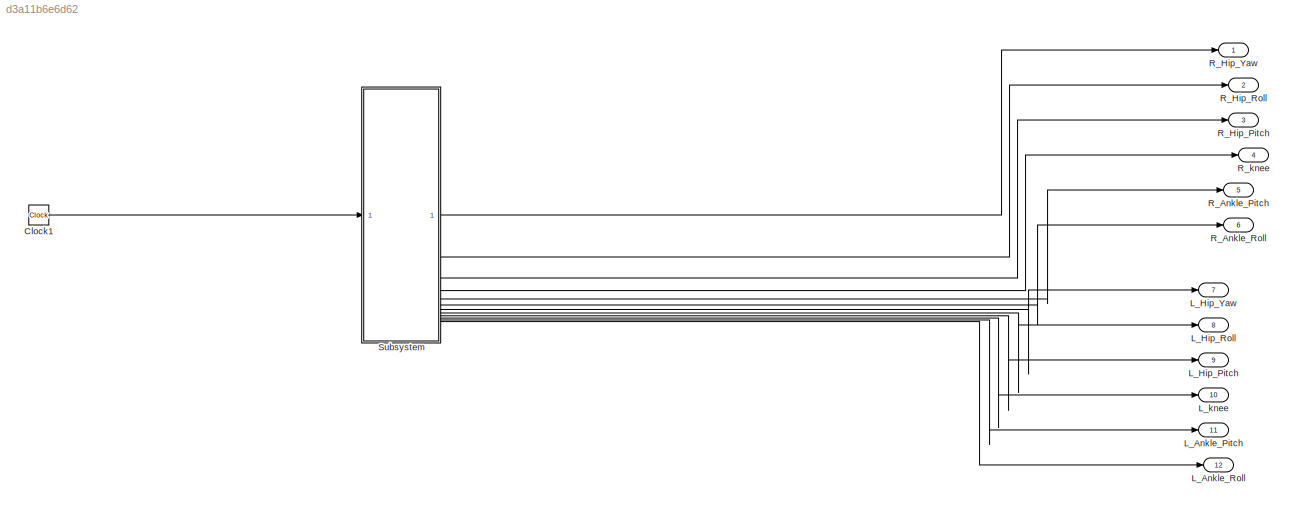
MODEL mdl_d3a11b6e6d62
KIND model
CONFIG AbsTol = auto
CONFIG EnableMultiTasking = off
CONFIG FixedStep = auto
CONFIG MaxStep = 0.01
CONFIG MinStep = auto
CONFIG RelTol = 1e-3
CONFIG SampleTimeConstraint = Unconstrained
CONFIG SolverName = VariableStepDiscrete
CONFIG StartTime = 0.0
CONFIG StopTime = inf
BLOCK [Clock] Clock1
  Decimation = 5
BLOCK [Outport] L_Ankle_Pitch
  Port = 11
BLOCK [Outport] L_Ankle_Roll
  Port = 12
BLOCK [Outport] L_Hip_Pitch
  Port = 9
BLOCK [Outport] L_Hip_Roll
  Port = 8
BLOCK [Outport] L_Hip_Yaw
  Port = 7
BLOCK [Outport] L_knee
  Port = 10
BLOCK [Outport] R_Ankle_Pitch
  Port = 5
BLOCK [Outport] R_Ankle_Roll
  Port = 6
BLOCK [Outport] R_Hip_Pitch
  Port = 3
BLOCK [Outport] R_Hip_Roll
  Port = 2
BLOCK [Outport] R_Hip_Yaw
BLOCK [Outport] R_knee
  Port = 4
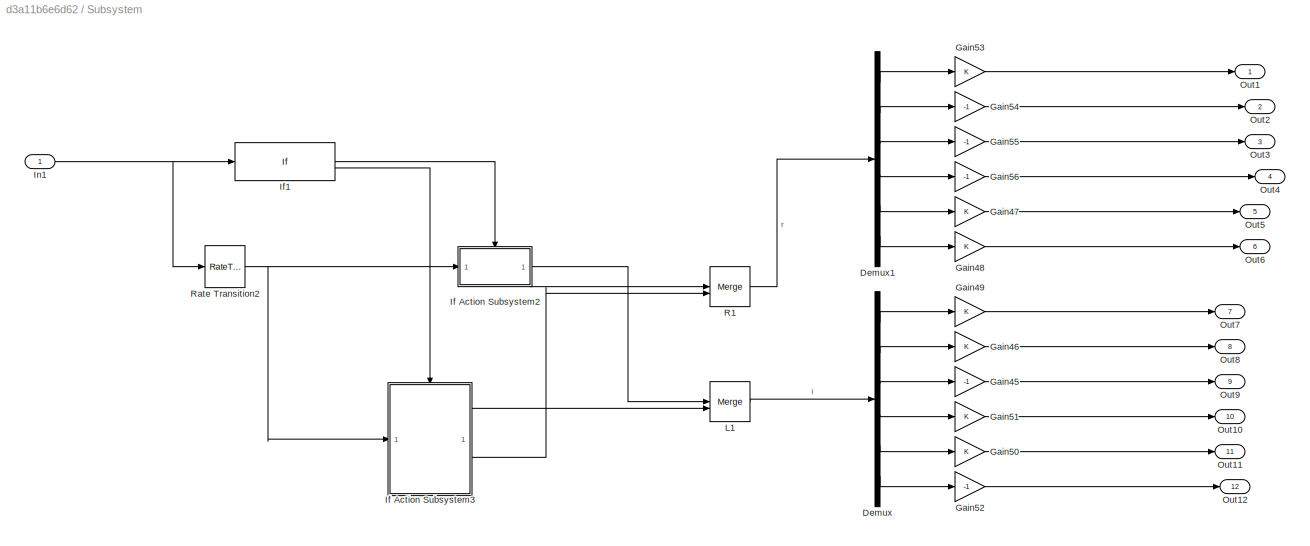
BLOCK [SubSystem] Subsystem
BLOCK [Demux] Subsystem/Demux
  Outputs = 6
BLOCK [Demux] Subsystem/Demux1
  Outputs = 6
BLOCK [Gain] Subsystem/Gain45
  Gain = -1
BLOCK [Gain] Subsystem/Gain46
BLOCK [Gain] Subsystem/Gain47
BLOCK [Gain] Subsystem/Gain48
BLOCK [Gain] Subsystem/Gain49
BLOCK [Gain] Subsystem/Gain50
BLOCK [Gain] Subsystem/Gain51
BLOCK [Gain] Subsystem/Gain52
  Gain = -1
BLOCK [Gain] Subsystem/Gain53
BLOCK [Gain] Subsystem/Gain54
  Gain = -1
BLOCK [Gain] Subsystem/Gain55
  Gain = -1
BLOCK [Gain] Subsystem/Gain56
  Gain = -1
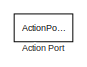
[diagram: Subsystem/If Action Subsystem2 - part 1/4, top center region]
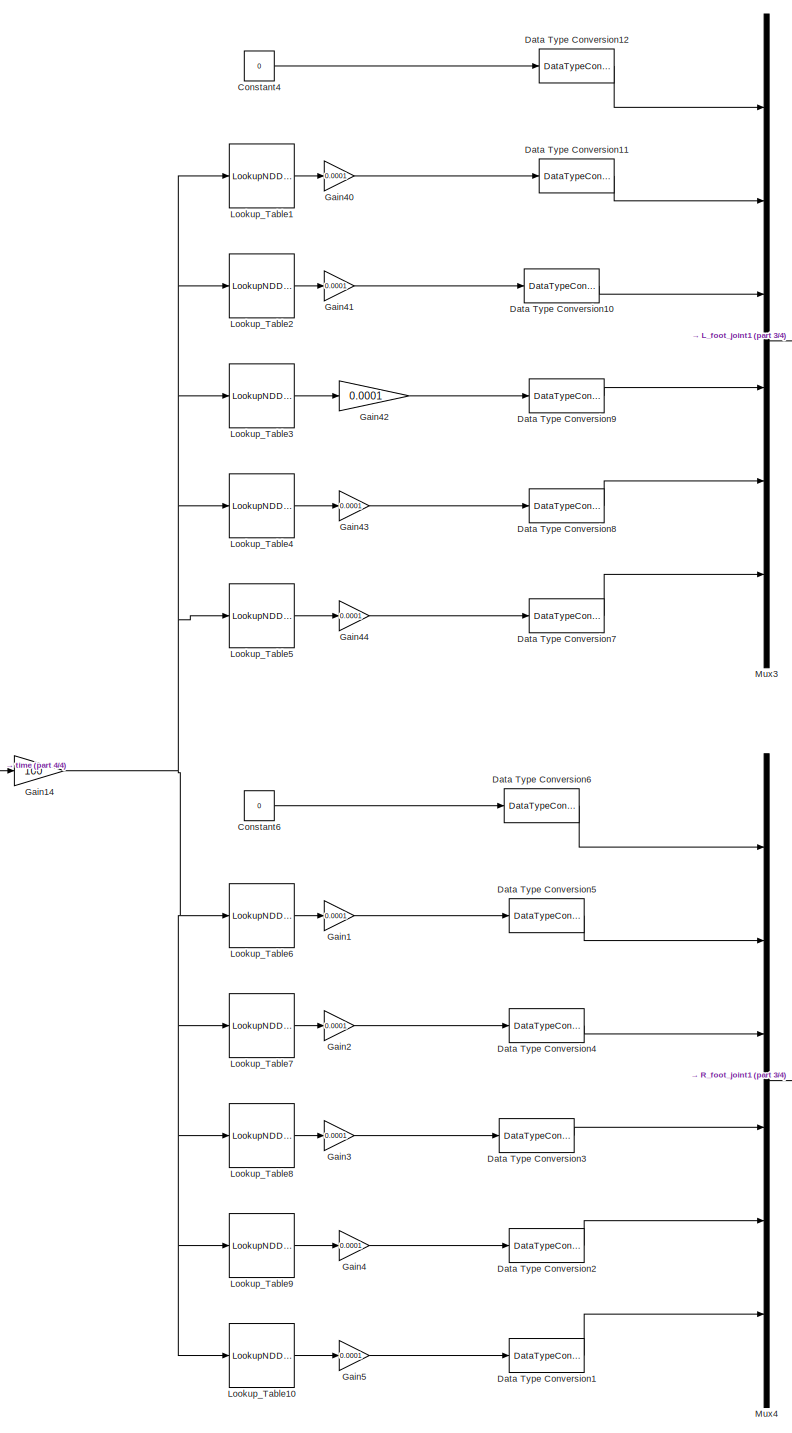
[diagram: Subsystem/If Action Subsystem2 - part 2/4, center side, full height]
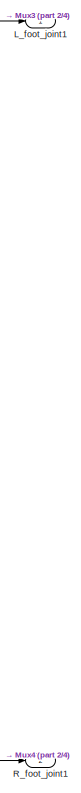
[diagram: Subsystem/If Action Subsystem2 - part 3/4, middle right region]
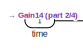
[diagram: Subsystem/If Action Subsystem2 - part 4/4, middle left region]
BLOCK [SubSystem] Subsystem/If Action Subsystem2
  TreatAsAtomicUnit = on
BLOCK [ActionPort] Subsystem/If Action Subsystem2/Action Port
  ActionPortLabel = if(u1<= 2)
BLOCK [Constant] Subsystem/If Action Subsystem2/Constant4
  SampleTime = -1
  Value = 0
BLOCK [Constant] Subsystem/If Action Subsystem2/Constant6
  SampleTime = -1
  Value = 0
BLOCK [DataTypeConversion] Subsystem/If Action Subsystem2/Data Type Conversion1
  OutDataTypeStr = double
  RndMeth = Floor
  SaturateOnIntegerOverflow = off
BLOCK [DataTypeConversion] Subsystem/If Action Subsystem2/Data Type Conversion10
  OutDataTypeStr = double
  RndMeth = Floor
  SaturateOnIntegerOverflow = off
BLOCK [DataTypeConversion] Subsystem/If Action Subsystem2/Data Type Conversion11
  OutDataTypeStr = double
  RndMeth = Floor
  SaturateOnIntegerOverflow = off
BLOCK [DataTypeConversion] Subsystem/If Action Subsystem2/Data Type Conversion12
  OutDataTypeStr = double
  RndMeth = Floor
  SaturateOnIntegerOverflow = off
BLOCK [DataTypeConversion] Subsystem/If Action Subsystem2/Data Type Conversion2
  OutDataTypeStr = double
  RndMeth = Floor
  SaturateOnIntegerOverflow = off
BLOCK [DataTypeConversion] Subsystem/If Action Subsystem2/Data Type Conversion3
  OutDataTypeStr = double
  RndMeth = Floor
  SaturateOnIntegerOverflow = off
BLOCK [DataTypeConversion] Subsystem/If Action Subsystem2/Data Type Conversion4
  OutDataTypeStr = double
  RndMeth = Floor
  SaturateOnIntegerOverflow = off
BLOCK [DataTypeConversion] Subsystem/If Action Subsystem2/Data Type Conversion5
  OutDataTypeStr = double
  RndMeth = Floor
  SaturateOnIntegerOverflow = off
BLOCK [DataTypeConversion] Subsystem/If Action Subsystem2/Data Type Conversion6
  OutDataTypeStr = double
  RndMeth = Floor
  SaturateOnIntegerOverflow = off
BLOCK [DataTypeConversion] Subsystem/If Action Subsystem2/Data Type Conversion7
  OutDataTypeStr = double
  RndMeth = Floor
  SaturateOnIntegerOverflow = off
BLOCK [DataTypeConversion] Subsystem/If Action Subsystem2/Data Type Conversion8
  OutDataTypeStr = double
  RndMeth = Floor
  SaturateOnIntegerOverflow = off
BLOCK [DataTypeConversion] Subsystem/If Action Subsystem2/Data Type Conversion9
  OutDataTypeStr = double
  RndMeth = Floor
  SaturateOnIntegerOverflow = off
BLOCK [Gain] Subsystem/If Action Subsystem2/Gain1
  Gain = 0.0001
BLOCK [Gain] Subsystem/If Action Subsystem2/Gain14
  Gain = 100
BLOCK [Gain] Subsystem/If Action Subsystem2/Gain2
  Gain = 0.0001
BLOCK [Gain] Subsystem/If Action Subsystem2/Gain3
  Gain = 0.0001
BLOCK [Gain] Subsystem/If Action Subsystem2/Gain4
  Gain = 0.0001
BLOCK [Gain] Subsystem/If Action Subsystem2/Gain40
  Gain = 0.0001
BLOCK [Gain] Subsystem/If Action Subsystem2/Gain41
  Gain = 0.0001
BLOCK [Gain] Subsystem/If Action Subsystem2/Gain42
  Gain = 0.0001
BLOCK [Gain] Subsystem/If Action Subsystem2/Gain43
  Gain = 0.0001
BLOCK [Gain] Subsystem/If Action Subsystem2/Gain44
  Gain = 0.0001
BLOCK [Gain] Subsystem/If Action Subsystem2/Gain5
  Gain = 0.0001
BLOCK [Outport] Subsystem/If Action Subsystem2/L_foot_joint1
BLOCK [LookupNDDirect] Subsystem/If Action Subsystem2/Lookup_Table1
  NumberOfTableDimensions = 1
  RemoveProtectionInput = on
  Table = [0;0;0;0;0;0;0;0;0;0;0;0;0;0;0;0;0;0;0;0;0;0;0;0;0;0;0;0;0;0;0;0;0;0;0;0;0;0;0;0;0;0;0;0;0;0;0;0;0;0;0;0;0;0;0;0;0;0;0;0;0;0;0;0;0;0;0;0;0;0;0;0;0;0;0;0;0;0;0;0;0;0;0;0;0;0;0;0;0;0;0;0;0;0;0;0;0;0;0;0;0;0;0;0;0;-1;-1;-2;-4;-6;-9;-12;-17;-22;-29;-37;-46;-57;-69;-83;-99;-117;-137;-159;-183;-209;-238;-269;-303;-339;-378;-420;-463;-510;-559;-610;-664;-720;-779;-839;-902;-966;-1032;-1100;-1169;-1238;-1...<+320ch>
  TableDataTypeStr = int16
BLOCK [LookupNDDirect] Subsystem/If Action Subsystem2/Lookup_Table10
  NumberOfTableDimensions = 1
  RemoveProtectionInput = on
  Table = [0;0;0;0;0;0;0;0;0;0;0;0;0;0;0;0;0;0;0;0;0;0;0;0;0;0;0;0;0;0;0;0;0;0;0;0;0;0;0;0;0;0;0;0;0;0;0;0;0;0;0;0;0;0;0;0;0;0;0;0;0;0;0;0;0;0;0;0;0;0;0;0;0;0;0;0;0;0;0;0;0;0;0;0;0;0;0;0;0;0;0;0;0;0;0;0;0;0;0;0;0;0;0;0;0;1;1;2;4;6;9;12;17;22;29;37;46;57;69;83;99;117;137;159;183;209;238;269;303;339;378;420;463;510;559;610;664;720;779;839;902;966;1032;1100;1169;1238;1309;1380;1451;1523;1593;1664;1733;1801;186...<+223ch>
  TableDataTypeStr = int16
BLOCK [LookupNDDirect] Subsystem/If Action Subsystem2/Lookup_Table2
  NumberOfTableDimensions = 1
  RemoveProtectionInput = on
  Table = [0;0;0;0;0;0;0;0;0;0;0;0;0;0;0;0;0;0;0;0;0;0;0;0;0;0;0;0;0;0;0;0;0;0;0;0;0;0;0;0;0;0;0;0;0;0;0;0;0;0;223;277;396;536;683;832;981;1128;1274;1418;1560;1699;1837;1971;2103;2233;2360;2484;2606;2724;2840;2953;3063;3170;3273;3374;3472;3566;3657;3745;3830;3911;3989;4063;4134;4201;4264;4324;4380;4432;4480;4524;4564;4600;4631;4658;4681;4698;4711;4719;4719;4719;4719;4719;4719;4719;4719;4719;4719;4719;4719;4...<+449ch>
  TableDataTypeStr = int16
BLOCK [LookupNDDirect] Subsystem/If Action Subsystem2/Lookup_Table3
  NumberOfTableDimensions = 1
  RemoveProtectionInput = on
  Table = [0;0;0;0;0;0;0;0;0;0;0;0;0;0;0;0;0;0;0;0;0;0;0;0;0;0;0;0;0;0;0;0;0;0;0;0;0;0;0;0;0;0;0;0;0;0;0;0;0;0;552;688;983;1332;1697;2067;2437;2805;3169;3528;3883;4233;4578;4917;5250;5577;5899;6214;6523;6826;7123;7412;7695;7972;8241;8503;8758;9005;9244;9476;9700;9916;10123;10322;10511;10692;10864;11026;11178;11320;11452;11573;11683;11781;11868;11943;12005;12054;12090;12112;12112;12112;12112;12112;12112;1211...<+572ch>
  TableDataTypeStr = int16
BLOCK [LookupNDDirect] Subsystem/If Action Subsystem2/Lookup_Table4
  NumberOfTableDimensions = 1
  RemoveProtectionInput = on
  Table = [0;0;0;0;0;0;0;0;0;0;0;0;0;0;0;0;0;0;0;0;0;0;0;0;0;0;0;0;0;0;0;0;0;0;0;0;0;0;0;0;0;0;0;0;0;0;0;0;0;0;330;411;587;795;1014;1235;1456;1676;1895;2110;2323;2534;2741;2945;3146;3344;3539;3730;3918;4102;4283;4460;4633;4802;4967;5129;5286;5439;5587;5731;5870;6005;6134;6259;6378;6491;6599;6702;6798;6888;6972;7048;7119;7181;7237;7285;7324;7356;7379;7393;7393;7393;7393;7393;7393;7393;7393;7393;7393;7393;739...<+452ch>
  TableDataTypeStr = int16
BLOCK [LookupNDDirect] Subsystem/If Action Subsystem2/Lookup_Table5
  NumberOfTableDimensions = 1
  RemoveProtectionInput = on
  Table = [0;0;0;0;0;0;0;0;0;0;0;0;0;0;0;0;0;0;0;0;0;0;0;0;0;0;0;0;0;0;0;0;0;0;0;0;0;0;0;0;0;0;0;0;0;0;0;0;0;0;0;0;0;0;0;0;0;0;0;0;0;0;0;0;0;0;0;0;0;0;0;0;0;0;0;0;0;0;0;0;0;0;0;0;0;0;0;0;0;0;0;0;0;0;0;0;0;0;0;0;0;0;0;0;0;1;1;2;4;6;9;12;17;22;29;37;46;57;69;83;99;117;137;159;183;209;238;269;303;339;378;420;463;510;559;610;664;720;779;839;902;966;1032;1100;1169;1238;1309;1380;1451;1523;1593;1664;1733;1802;187...<+224ch>
  TableDataTypeStr = int16
BLOCK [LookupNDDirect] Subsystem/If Action Subsystem2/Lookup_Table6
  NumberOfTableDimensions = 1
  RemoveProtectionInput = on
  Table = [0;0;0;0;0;0;0;0;0;0;0;0;0;0;0;0;0;0;0;0;0;0;0;0;0;0;0;0;0;0;0;0;0;0;0;0;0;0;0;0;0;0;0;0;0;0;0;0;0;0;0;0;0;0;0;0;0;0;0;0;0;0;0;0;0;0;0;0;0;0;0;0;0;0;0;0;0;0;0;0;0;0;0;0;0;0;0;0;0;0;0;0;0;0;0;0;0;0;0;0;0;0;0;0;0;-1;-1;-2;-4;-6;-9;-12;-17;-22;-29;-37;-46;-57;-69;-83;-99;-117;-137;-159;-183;-209;-238;-269;-303;-339;-378;-420;-463;-510;-559;-610;-664;-720;-779;-839;-902;-966;-1032;-1100;-1169;-1238;-1...<+319ch>
  TableDataTypeStr = int16
BLOCK [LookupNDDirect] Subsystem/If Action Subsystem2/Lookup_Table7
  NumberOfTableDimensions = 1
  RemoveProtectionInput = on
  Table = [0;0;0;0;0;0;0;0;0;0;0;0;0;0;0;0;0;0;0;0;0;0;0;0;0;0;0;0;0;0;0;0;0;0;0;0;0;0;0;0;0;0;0;0;0;0;0;0;0;0;223;277;396;536;683;832;981;1128;1274;1418;1560;1699;1837;1971;2103;2233;2360;2484;2606;2724;2840;2953;3063;3170;3273;3374;3472;3566;3657;3745;3830;3911;3989;4063;4134;4201;4264;4324;4380;4432;4480;4524;4564;4600;4631;4658;4681;4698;4711;4719;4719;4719;4719;4719;4719;4719;4719;4719;4719;4719;4719;4...<+449ch>
  TableDataTypeStr = int16
BLOCK [LookupNDDirect] Subsystem/If Action Subsystem2/Lookup_Table8
  NumberOfTableDimensions = 1
  RemoveProtectionInput = on
  Table = [0;0;0;0;0;0;0;0;0;0;0;0;0;0;0;0;0;0;0;0;0;0;0;0;0;0;0;0;0;0;0;0;0;0;0;0;0;0;0;0;0;0;0;0;0;0;0;0;0;0;552;688;983;1332;1697;2067;2437;2805;3169;3528;3883;4233;4578;4917;5250;5577;5899;6214;6523;6826;7123;7412;7695;7972;8241;8503;8758;9005;9244;9476;9700;9916;10123;10322;10511;10692;10864;11026;11178;11320;11452;11573;11683;11781;11868;11943;12005;12054;12090;12112;12112;12112;12112;12112;12112;1211...<+572ch>
  TableDataTypeStr = int16
BLOCK [LookupNDDirect] Subsystem/If Action Subsystem2/Lookup_Table9
  NumberOfTableDimensions = 1
  RemoveProtectionInput = on
  Table = [0;0;0;0;0;0;0;0;0;0;0;0;0;0;0;0;0;0;0;0;0;0;0;0;0;0;0;0;0;0;0;0;0;0;0;0;0;0;0;0;0;0;0;0;0;0;0;0;0;0;330;411;587;795;1014;1235;1456;1676;1895;2110;2323;2534;2741;2945;3146;3344;3539;3730;3918;4102;4283;4460;4633;4802;4967;5129;5286;5439;5587;5731;5870;6005;6134;6259;6378;6491;6599;6702;6798;6888;6972;7048;7119;7181;7237;7285;7324;7356;7379;7393;7393;7393;7393;7393;7393;7393;7393;7393;7393;7393;739...<+452ch>
  TableDataTypeStr = int16
BLOCK [Mux] Subsystem/If Action Subsystem2/Mux3
  DisplayOption = bar
  Inputs = 6
BLOCK [Mux] Subsystem/If Action Subsystem2/Mux4
  DisplayOption = bar
  Inputs = 6
BLOCK [Outport] Subsystem/If Action Subsystem2/R_foot_joint1
  Port = 2
BLOCK [Inport] Subsystem/If Action Subsystem2/time
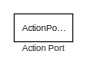
[diagram: Subsystem/If Action Subsystem3 - part 1/4, top center region]
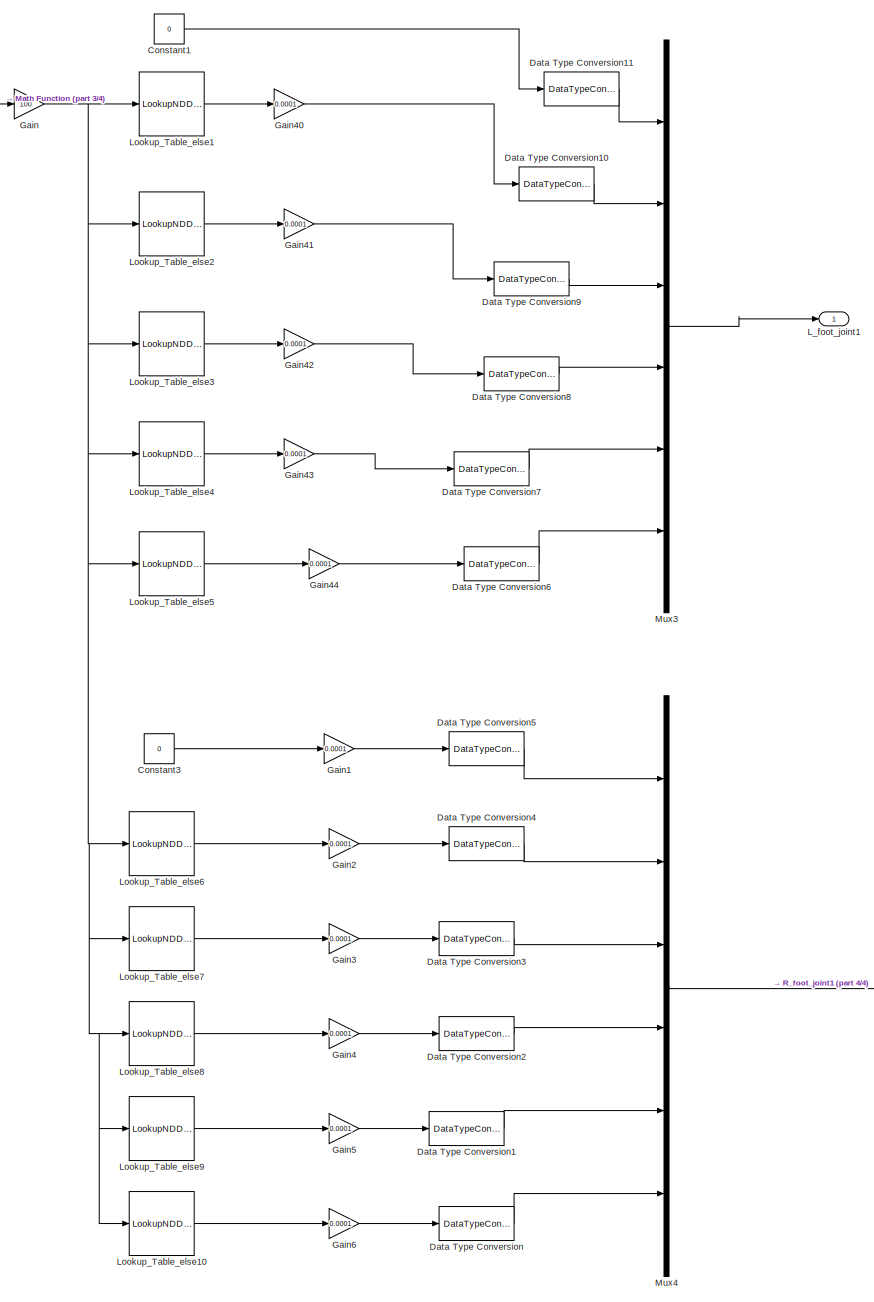
[diagram: Subsystem/If Action Subsystem3 - part 2/4, center side, full height]
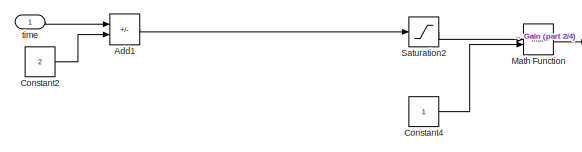
[diagram: Subsystem/If Action Subsystem3 - part 3/4, top left region]
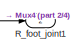
[diagram: Subsystem/If Action Subsystem3 - part 4/4, bottom right region]
BLOCK [SubSystem] Subsystem/If Action Subsystem3
  TreatAsAtomicUnit = on
BLOCK [ActionPort] Subsystem/If Action Subsystem3/Action Port
  ActionPortLabel = else
BLOCK [Sum] Subsystem/If Action Subsystem3/Add1
  IconShape = rectangular
  Inputs = +-
BLOCK [Constant] Subsystem/If Action Subsystem3/Constant1
  SampleTime = -1
  Value = 0
BLOCK [Constant] Subsystem/If Action Subsystem3/Constant2
  Value = 2
BLOCK [Constant] Subsystem/If Action Subsystem3/Constant3
  SampleTime = -1
  Value = 0
BLOCK [Constant] Subsystem/If Action Subsystem3/Constant4
BLOCK [DataTypeConversion] Subsystem/If Action Subsystem3/Data Type Conversion
  OutDataTypeStr = double
  RndMeth = Floor
  SaturateOnIntegerOverflow = off
BLOCK [DataTypeConversion] Subsystem/If Action Subsystem3/Data Type Conversion1
  OutDataTypeStr = double
  RndMeth = Floor
  SaturateOnIntegerOverflow = off
BLOCK [DataTypeConversion] Subsystem/If Action Subsystem3/Data Type Conversion10
  OutDataTypeStr = double
  RndMeth = Floor
  SaturateOnIntegerOverflow = off
BLOCK [DataTypeConversion] Subsystem/If Action Subsystem3/Data Type Conversion11
  OutDataTypeStr = double
  RndMeth = Floor
  SaturateOnIntegerOverflow = off
BLOCK [DataTypeConversion] Subsystem/If Action Subsystem3/Data Type Conversion2
  OutDataTypeStr = double
  RndMeth = Floor
  SaturateOnIntegerOverflow = off
BLOCK [DataTypeConversion] Subsystem/If Action Subsystem3/Data Type Conversion3
  OutDataTypeStr = double
  RndMeth = Floor
  SaturateOnIntegerOverflow = off
BLOCK [DataTypeConversion] Subsystem/If Action Subsystem3/Data Type Conversion4
  OutDataTypeStr = double
  RndMeth = Floor
  SaturateOnIntegerOverflow = off
BLOCK [DataTypeConversion] Subsystem/If Action Subsystem3/Data Type Conversion5
  OutDataTypeStr = double
  RndMeth = Floor
  SaturateOnIntegerOverflow = off
BLOCK [DataTypeConversion] Subsystem/If Action Subsystem3/Data Type Conversion6
  OutDataTypeStr = double
  RndMeth = Floor
  SaturateOnIntegerOverflow = off
BLOCK [DataTypeConversion] Subsystem/If Action Subsystem3/Data Type Conversion7
  OutDataTypeStr = double
  RndMeth = Floor
  SaturateOnIntegerOverflow = off
BLOCK [DataTypeConversion] Subsystem/If Action Subsystem3/Data Type Conversion8
  OutDataTypeStr = double
  RndMeth = Floor
  SaturateOnIntegerOverflow = off
BLOCK [DataTypeConversion] Subsystem/If Action Subsystem3/Data Type Conversion9
  OutDataTypeStr = double
  RndMeth = Floor
  SaturateOnIntegerOverflow = off
BLOCK [Gain] Subsystem/If Action Subsystem3/Gain
  Gain = 100
BLOCK [Gain] Subsystem/If Action Subsystem3/Gain1
  Gain = 0.0001
BLOCK [Gain] Subsystem/If Action Subsystem3/Gain2
  Gain = 0.0001
BLOCK [Gain] Subsystem/If Action Subsystem3/Gain3
  Gain = 0.0001
BLOCK [Gain] Subsystem/If Action Subsystem3/Gain4
  Gain = 0.0001
BLOCK [Gain] Subsystem/If Action Subsystem3/Gain40
  Gain = 0.0001
BLOCK [Gain] Subsystem/If Action Subsystem3/Gain41
  Gain = 0.0001
BLOCK [Gain] Subsystem/If Action Subsystem3/Gain42
  Gain = 0.0001
BLOCK [Gain] Subsystem/If Action Subsystem3/Gain43
  Gain = 0.0001
BLOCK [Gain] Subsystem/If Action Subsystem3/Gain44
  Gain = 0.0001
BLOCK [Gain] Subsystem/If Action Subsystem3/Gain5
  Gain = 0.0001
BLOCK [Gain] Subsystem/If Action Subsystem3/Gain6
  Gain = 0.0001
BLOCK [Outport] Subsystem/If Action Subsystem3/L_foot_joint1
BLOCK [LookupNDDirect] Subsystem/If Action Subsystem3/Lookup_Table_else1
  NumberOfTableDimensions = 1
  RemoveProtectionInput = on
  Table = [93;232;369;505;638;767;893;1014;1131;1242;1348;1448;1541;1628;1709;1782;1848;1907;1958;2002;2038;2066;2086;2099;2104;2101;2090;2071;2044;2010;1968;1918;1861;1797;1725;1646;1561;1469;1370;1266;1156;1041;922;798;670;539;406;270;133;-4;-142;-279;-414;-550;-684;-817;-949;-1079;-1208;-1334;-1458;-1578;-1694;-1806;-1912;-2013;-2107;-2192;-2270;-2337;-2395;-2440;-2474;-2495;-2502;-2497;-2481;-2450;-2407...<+116ch>
  TableDataTypeStr = int16
BLOCK [LookupNDDirect] Subsystem/If Action Subsystem3/Lookup_Table_else10
  NumberOfTableDimensions = 1
  RemoveProtectionInput = on
  Table = [-93;-232;-370;-507;-642;-777;-910;-1041;-1171;-1298;-1422;-1543;-1661;-1773;-1881;-1982;-2076;-2163;-2241;-2310;-2368;-2414;-2449;-2470;-2478;-2475;-2459;-2430;-2388;-2333;-2267;-2190;-2105;-2011;-1910;-1803;-1690;-1573;-1452;-1328;-1201;-1072;-941;-809;-675;-541;-406;-270;-133;4;142;279;414;548;679;807;931;1051;1166;1277;1381;1480;1573;1659;1738;1810;1875;1933;1983;2026;2061;2089;2108;2120;2124;...<+115ch>
  TableDataTypeStr = int16
BLOCK [LookupNDDirect] Subsystem/If Action Subsystem3/Lookup_Table_else2
  NumberOfTableDimensions = 1
  RemoveProtectionInput = on
  Table = [4660;4662;4662;4659;4654;4647;4637;4627;4614;4601;4586;4571;4555;4540;4524;4509;4495;4482;4470;4460;4451;4444;4439;4436;4435;4436;4439;4444;4451;4460;4471;4483;4497;4511;4527;4543;4559;4575;4591;4606;4620;4634;4645;4656;4664;4670;4674;4675;4674;4671;4665;4656;4655;4673;4706;4754;4813;4881;4958;5039;5125;5212;5300;5386;5470;5551;5626;5696;5760;5815;5863;5901;5930;5947;5953;5952;5945;5926;5894;5852...<+101ch>
  TableDataTypeStr = int16
BLOCK [LookupNDDirect] Subsystem/If Action Subsystem3/Lookup_Table_else3
  NumberOfTableDimensions = 1
  RemoveProtectionInput = on
  Table = [11948;11954;11953;11945;11931;11911;11885;11855;11821;11783;11743;11701;11659;11616;11573;11532;11493;11457;11424;11396;11372;11353;11339;11330;11328;11331;11339;11354;11373;11398;11427;11461;11498;11538;11580;11624;11668;11713;11757;11799;11838;11875;11908;11936;11958;11975;11986;11990;11987;11978;11961;11937;11935;11984;12077;12209;12374;12567;12783;13016;13261;13514;13769;14024;14274;14516;147...<+201ch>
  TableDataTypeStr = int16
BLOCK [LookupNDDirect] Subsystem/If Action Subsystem3/Lookup_Table_else4
  NumberOfTableDimensions = 1
  RemoveProtectionInput = on
  Table = [7288;7292;7291;7286;7277;7264;7248;7229;7207;7183;7157;7131;7103;7076;7049;7023;6998;6975;6954;6936;6921;6909;6900;6895;6893;6895;6900;6909;6922;6938;6956;6977;7001;7026;7053;7081;7109;7138;7166;7193;7218;7241;7262;7280;7295;7305;7312;7315;7313;7307;7296;7281;7280;7311;7370;7455;7561;7686;7825;7976;8136;8301;8470;8638;8804;8965;9119;9263;9395;9513;9615;9698;9760;9798;9811;9810;9795;9752;9683;9591...<+101ch>
  TableDataTypeStr = int16
BLOCK [LookupNDDirect] Subsystem/If Action Subsystem3/Lookup_Table_else5
  NumberOfTableDimensions = 1
  RemoveProtectionInput = on
  Table = [-93;-232;-369;-505;-638;-767;-893;-1014;-1131;-1242;-1348;-1448;-1541;-1628;-1709;-1782;-1848;-1907;-1958;-2002;-2038;-2066;-2086;-2099;-2104;-2101;-2090;-2071;-2044;-2010;-1968;-1918;-1861;-1797;-1725;-1646;-1561;-1469;-1370;-1266;-1156;-1041;-922;-798;-670;-539;-406;-270;-133;4;142;279;414;550;684;817;949;1079;1208;1334;1458;1578;1694;1806;1912;2013;2107;2192;2270;2337;2395;2440;2474;2495;2502;...<+115ch>
  TableDataTypeStr = int16
BLOCK [LookupNDDirect] Subsystem/If Action Subsystem3/Lookup_Table_else6
  NumberOfTableDimensions = 1
  RemoveProtectionInput = on
  Table = [93;232;370;507;642;777;910;1041;1171;1298;1422;1543;1661;1773;1881;1982;2076;2163;2241;2310;2368;2414;2449;2470;2478;2475;2459;2430;2388;2333;2267;2190;2105;2011;1910;1803;1690;1573;1452;1328;1201;1072;941;809;675;541;406;270;133;-4;-142;-279;-414;-548;-679;-807;-931;-1051;-1166;-1277;-1381;-1480;-1573;-1659;-1738;-1810;-1875;-1933;-1983;-2026;-2061;-2089;-2108;-2120;-2124;-2120;-2108;-2088;-2061...<+116ch>
  TableDataTypeStr = int16
BLOCK [LookupNDDirect] Subsystem/If Action Subsystem3/Lookup_Table_else7
  NumberOfTableDimensions = 1
  RemoveProtectionInput = on
  Table = [4661;4653;4654;4672;4706;4754;4814;4883;4960;5042;5128;5215;5303;5390;5474;5555;5631;5701;5764;5820;5868;5906;5934;5952;5957;5957;5950;5930;5898;5855;5803;5741;5672;5595;5512;5425;5334;5241;5148;5056;4967;4884;4809;4744;4691;4654;4634;4634;4644;4651;4655;4657;4656;4653;4648;4640;4631;4620;4607;4593;4579;4563;4548;4532;4517;4502;4488;4475;4463;4453;4444;4437;4432;4430;4429;4430;4434;4439;4447;4456...<+101ch>
  TableDataTypeStr = int16
BLOCK [LookupNDDirect] Subsystem/If Action Subsystem3/Lookup_Table_else8
  NumberOfTableDimensions = 1
  RemoveProtectionInput = on
  Table = [11952;11930;11931;11981;12076;12210;12377;12571;12789;13023;13269;13523;13780;14035;14286;14528;14758;14973;15169;15343;15493;15614;15704;15760;15778;15777;15755;15691;15590;15455;15290;15098;14883;14649;14400;14139;13870;13598;13328;13063;12811;12576;12364;12181;12035;11932;11877;11877;11903;11922;11934;11939;11937;11928;11913;11893;11867;11836;11801;11763;11723;11681;11638;11595;11552;11511;114...<+201ch>
  TableDataTypeStr = int16
BLOCK [LookupNDDirect] Subsystem/If Action Subsystem3/Lookup_Table_else9
  NumberOfTableDimensions = 1
  RemoveProtectionInput = on
  Table = [7290;7276;7277;7309;7370;7456;7563;7689;7829;7981;8142;8308;8476;8645;8812;8973;9128;9272;9405;9523;9625;9708;9770;9809;9821;9820;9805;9761;9692;9599;9487;9357;9212;9054;8887;8714;8536;8357;8180;8007;7843;7691;7555;7438;7344;7277;7243;7243;7259;7271;7279;7282;7281;7275;7266;7253;7236;7216;7194;7170;7144;7117;7090;7063;7036;7010;6985;6962;6942;6924;6909;6897;6889;6884;6883;6885;6891;6901;6914;6930...<+101ch>
  TableDataTypeStr = int16
BLOCK [Math] Subsystem/If Action Subsystem3/Math Function
  Operator = mod
BLOCK [Mux] Subsystem/If Action Subsystem3/Mux3
  DisplayOption = bar
  Inputs = 6
BLOCK [Mux] Subsystem/If Action Subsystem3/Mux4
  DisplayOption = bar
  Inputs = 6
BLOCK [Outport] Subsystem/If Action Subsystem3/R_foot_joint1
  Port = 2
BLOCK [Saturate] Subsystem/If Action Subsystem3/Saturation2
  LowerLimit = 0
  UpperLimit = inf
BLOCK [Inport] Subsystem/If Action Subsystem3/time
BLOCK [If] Subsystem/If1
  IfExpression = u1<= 2
BLOCK [Inport] Subsystem/In1
BLOCK [Merge] Subsystem/L1
BLOCK [Outport] Subsystem/Out1
BLOCK [Outport] Subsystem/Out10
  Port = 10
BLOCK [Outport] Subsystem/Out11
  Port = 11
BLOCK [Outport] Subsystem/Out12
  Port = 12
BLOCK [Outport] Subsystem/Out2
  Port = 2
BLOCK [Outport] Subsystem/Out3
  Port = 3
BLOCK [Outport] Subsystem/Out4
  Port = 4
BLOCK [Outport] Subsystem/Out5
  Port = 5
BLOCK [Outport] Subsystem/Out6
  Port = 6
BLOCK [Outport] Subsystem/Out7
  Port = 7
BLOCK [Outport] Subsystem/Out8
  Port = 8
BLOCK [Outport] Subsystem/Out9
  Port = 9
BLOCK [Merge] Subsystem/R1
BLOCK [RateTransition] Subsystem/Rate Transition2
  OutPortSampleTime = 0.01
LINE Clock1:1 -> Subsystem:1
LINE Subsystem/Demux1:1 -> Subsystem/Gain53:1
LINE Subsystem/Demux1:2 -> Subsystem/Gain54:1
LINE Subsystem/Demux1:3 -> Subsystem/Gain55:1
LINE Subsystem/Demux1:4 -> Subsystem/Gain56:1
LINE Subsystem/Demux1:5 -> Subsystem/Gain47:1
LINE Subsystem/Demux1:6 -> Subsystem/Gain48:1
LINE Subsystem/Demux:1 -> Subsystem/Gain49:1
LINE Subsystem/Demux:2 -> Subsystem/Gain46:1
LINE Subsystem/Demux:3 -> Subsystem/Gain45:1
LINE Subsystem/Demux:4 -> Subsystem/Gain51:1
LINE Subsystem/Demux:5 -> Subsystem/Gain50:1
LINE Subsystem/Demux:6 -> Subsystem/Gain52:1
LINE Subsystem/Gain45:1 -> Subsystem/Out9:1
LINE Subsystem/Gain46:1 -> Subsystem/Out8:1
LINE Subsystem/Gain47:1 -> Subsystem/Out5:1
LINE Subsystem/Gain48:1 -> Subsystem/Out6:1
LINE Subsystem/Gain49:1 -> Subsystem/Out7:1
LINE Subsystem/Gain50:1 -> Subsystem/Out11:1
LINE Subsystem/Gain51:1 -> Subsystem/Out10:1
LINE Subsystem/Gain52:1 -> Subsystem/Out12:1
LINE Subsystem/Gain53:1 -> Subsystem/Out1:1
LINE Subsystem/Gain54:1 -> Subsystem/Out2:1
LINE Subsystem/Gain55:1 -> Subsystem/Out3:1
LINE Subsystem/Gain56:1 -> Subsystem/Out4:1
LINE Subsystem/If Action Subsystem2/Constant4:1 -> Subsystem/If Action Subsystem2/Data Type Conversion12:1
LINE Subsystem/If Action Subsystem2/Constant6:1 -> Subsystem/If Action Subsystem2/Data Type Conversion6:1
LINE Subsystem/If Action Subsystem2/Data Type Conversion10:1 -> Subsystem/If Action Subsystem2/Mux3:3
LINE Subsystem/If Action Subsystem2/Data Type Conversion11:1 -> Subsystem/If Action Subsystem2/Mux3:2
LINE Subsystem/If Action Subsystem2/Data Type Conversion12:1 -> Subsystem/If Action Subsystem2/Mux3:1
LINE Subsystem/If Action Subsystem2/Data Type Conversion1:1 -> Subsystem/If Action Subsystem2/Mux4:6
LINE Subsystem/If Action Subsystem2/Data Type Conversion2:1 -> Subsystem/If Action Subsystem2/Mux4:5
LINE Subsystem/If Action Subsystem2/Data Type Conversion3:1 -> Subsystem/If Action Subsystem2/Mux4:4
LINE Subsystem/If Action Subsystem2/Data Type Conversion4:1 -> Subsystem/If Action Subsystem2/Mux4:3
LINE Subsystem/If Action Subsystem2/Data Type Conversion5:1 -> Subsystem/If Action Subsystem2/Mux4:2
LINE Subsystem/If Action Subsystem2/Data Type Conversion6:1 -> Subsystem/If Action Subsystem2/Mux4:1
LINE Subsystem/If Action Subsystem2/Data Type Conversion7:1 -> Subsystem/If Action Subsystem2/Mux3:6
LINE Subsystem/If Action Subsystem2/Data Type Conversion8:1 -> Subsystem/If Action Subsystem2/Mux3:5
LINE Subsystem/If Action Subsystem2/Data Type Conversion9:1 -> Subsystem/If Action Subsystem2/Mux3:4
NET Subsystem/If Action Subsystem2/Gain14:1 -> Subsystem/If Action Subsystem2/Lookup_Table10:1, Subsystem/If Action Subsystem2/Lookup_Table1:1, Subsystem/If Action Subsystem2/Lookup_Table2:1, Subsystem/If Action Subsystem2/Lookup_Table3:1, Subsystem/If Action Subsystem2/Lookup_Table4:1, Subsystem/If Action Subsystem2/Lookup_Table5:1, Subsystem/If Action Subsystem2/Lookup_Table6:1, Subsystem/If Action Subsystem2/Lookup_Table7:1, Subsystem/If Action Subsystem2/Lookup_Table8:1, Subsystem/If Action Subsystem2/Lookup_Table9:1
LINE Subsystem/If Action Subsystem2/Gain1:1 -> Subsystem/If Action Subsystem2/Data Type Conversion5:1
LINE Subsystem/If Action Subsystem2/Gain2:1 -> Subsystem/If Action Subsystem2/Data Type Conversion4:1
LINE Subsystem/If Action Subsystem2/Gain3:1 -> Subsystem/If Action Subsystem2/Data Type Conversion3:1
LINE Subsystem/If Action Subsystem2/Gain40:1 -> Subsystem/If Action Subsystem2/Data Type Conversion11:1
LINE Subsystem/If Action Subsystem2/Gain41:1 -> Subsystem/If Action Subsystem2/Data Type Conversion10:1
LINE Subsystem/If Action Subsystem2/Gain42:1 -> Subsystem/If Action Subsystem2/Data Type Conversion9:1
LINE Subsystem/If Action Subsystem2/Gain43:1 -> Subsystem/If Action Subsystem2/Data Type Conversion8:1
LINE Subsystem/If Action Subsystem2/Gain44:1 -> Subsystem/If Action Subsystem2/Data Type Conversion7:1
LINE Subsystem/If Action Subsystem2/Gain4:1 -> Subsystem/If Action Subsystem2/Data Type Conversion2:1
LINE Subsystem/If Action Subsystem2/Gain5:1 -> Subsystem/If Action Subsystem2/Data Type Conversion1:1
LINE Subsystem/If Action Subsystem2/Lookup_Table10:1 -> Subsystem/If Action Subsystem2/Gain5:1
LINE Subsystem/If Action Subsystem2/Lookup_Table1:1 -> Subsystem/If Action Subsystem2/Gain40:1
LINE Subsystem/If Action Subsystem2/Lookup_Table2:1 -> Subsystem/If Action Subsystem2/Gain41:1
LINE Subsystem/If Action Subsystem2/Lookup_Table3:1 -> Subsystem/If Action Subsystem2/Gain42:1
LINE Subsystem/If Action Subsystem2/Lookup_Table4:1 -> Subsystem/If Action Subsystem2/Gain43:1
LINE Subsystem/If Action Subsystem2/Lookup_Table5:1 -> Subsystem/If Action Subsystem2/Gain44:1
LINE Subsystem/If Action Subsystem2/Lookup_Table6:1 -> Subsystem/If Action Subsystem2/Gain1:1
LINE Subsystem/If Action Subsystem2/Lookup_Table7:1 -> Subsystem/If Action Subsystem2/Gain2:1
LINE Subsystem/If Action Subsystem2/Lookup_Table8:1 -> Subsystem/If Action Subsystem2/Gain3:1
LINE Subsystem/If Action Subsystem2/Lookup_Table9:1 -> Subsystem/If Action Subsystem2/Gain4:1
LINE Subsystem/If Action Subsystem2/Mux3:1 -> Subsystem/If Action Subsystem2/L_foot_joint1:1
LINE Subsystem/If Action Subsystem2/Mux4:1 -> Subsystem/If Action Subsystem2/R_foot_joint1:1
LINE Subsystem/If Action Subsystem2/time:1 -> Subsystem/If Action Subsystem2/Gain14:1
LINE Subsystem/If Action Subsystem2:1 -> Subsystem/L1:1
LINE Subsystem/If Action Subsystem2:2 -> Subsystem/R1:1
LINE Subsystem/If Action Subsystem3/Add1:1 -> Subsystem/If Action Subsystem3/Saturation2:1
LINE Subsystem/If Action Subsystem3/Constant1:1 -> Subsystem/If Action Subsystem3/Data Type Conversion11:1
LINE Subsystem/If Action Subsystem3/Constant2:1 -> Subsystem/If Action Subsystem3/Add1:2
LINE Subsystem/If Action Subsystem3/Constant3:1 -> Subsystem/If Action Subsystem3/Gain1:1
LINE Subsystem/If Action Subsystem3/Constant4:1 -> Subsystem/If Action Subsystem3/Math Function:2
LINE Subsystem/If Action Subsystem3/Data Type Conversion10:1 -> Subsystem/If Action Subsystem3/Mux3:2
LINE Subsystem/If Action Subsystem3/Data Type Conversion11:1 -> Subsystem/If Action Subsystem3/Mux3:1
LINE Subsystem/If Action Subsystem3/Data Type Conversion1:1 -> Subsystem/If Action Subsystem3/Mux4:5
LINE Subsystem/If Action Subsystem3/Data Type Conversion2:1 -> Subsystem/If Action Subsystem3/Mux4:4
LINE Subsystem/If Action Subsystem3/Data Type Conversion3:1 -> Subsystem/If Action Subsystem3/Mux4:3
LINE Subsystem/If Action Subsystem3/Data Type Conversion4:1 -> Subsystem/If Action Subsystem3/Mux4:2
LINE Subsystem/If Action Subsystem3/Data Type Conversion5:1 -> Subsystem/If Action Subsystem3/Mux4:1
LINE Subsystem/If Action Subsystem3/Data Type Conversion6:1 -> Subsystem/If Action Subsystem3/Mux3:6
LINE Subsystem/If Action Subsystem3/Data Type Conversion7:1 -> Subsystem/If Action Subsystem3/Mux3:5
LINE Subsystem/If Action Subsystem3/Data Type Conversion8:1 -> Subsystem/If Action Subsystem3/Mux3:4
LINE Subsystem/If Action Subsystem3/Data Type Conversion9:1 -> Subsystem/If Action Subsystem3/Mux3:3
LINE Subsystem/If Action Subsystem3/Data Type Conversion:1 -> Subsystem/If Action Subsystem3/Mux4:6
LINE Subsystem/If Action Subsystem3/Gain1:1 -> Subsystem/If Action Subsystem3/Data Type Conversion5:1
LINE Subsystem/If Action Subsystem3/Gain2:1 -> Subsystem/If Action Subsystem3/Data Type Conversion4:1
LINE Subsystem/If Action Subsystem3/Gain3:1 -> Subsystem/If Action Subsystem3/Data Type Conversion3:1
LINE Subsystem/If Action Subsystem3/Gain40:1 -> Subsystem/If Action Subsystem3/Data Type Conversion10:1
LINE Subsystem/If Action Subsystem3/Gain41:1 -> Subsystem/If Action Subsystem3/Data Type Conversion9:1
LINE Subsystem/If Action Subsystem3/Gain42:1 -> Subsystem/If Action Subsystem3/Data Type Conversion8:1
LINE Subsystem/If Action Subsystem3/Gain43:1 -> Subsystem/If Action Subsystem3/Data Type Conversion7:1
LINE Subsystem/If Action Subsystem3/Gain44:1 -> Subsystem/If Action Subsystem3/Data Type Conversion6:1
LINE Subsystem/If Action Subsystem3/Gain4:1 -> Subsystem/If Action Subsystem3/Data Type Conversion2:1
LINE Subsystem/If Action Subsystem3/Gain5:1 -> Subsystem/If Action Subsystem3/Data Type Conversion1:1
LINE Subsystem/If Action Subsystem3/Gain6:1 -> Subsystem/If Action Subsystem3/Data Type Conversion:1
NET Subsystem/If Action Subsystem3/Gain:1 -> Subsystem/If Action Subsystem3/Lookup_Table_else10:1, Subsystem/If Action Subsystem3/Lookup_Table_else1:1, Subsystem/If Action Subsystem3/Lookup_Table_else2:1, Subsystem/If Action Subsystem3/Lookup_Table_else3:1, Subsystem/If Action Subsystem3/Lookup_Table_else4:1, Subsystem/If Action Subsystem3/Lookup_Table_else5:1, Subsystem/If Action Subsystem3/Lookup_Table_else6:1, Subsystem/If Action Subsystem3/Lookup_Table_else7:1, Subsystem/If Action Subsystem3/Lookup_Table_else8:1, Subsystem/If Action Subsystem3/Lookup_Table_else9:1
LINE Subsystem/If Action Subsystem3/Lookup_Table_else10:1 -> Subsystem/If Action Subsystem3/Gain6:1
LINE Subsystem/If Action Subsystem3/Lookup_Table_else1:1 -> Subsystem/If Action Subsystem3/Gain40:1
LINE Subsystem/If Action Subsystem3/Lookup_Table_else2:1 -> Subsystem/If Action Subsystem3/Gain41:1
LINE Subsystem/If Action Subsystem3/Lookup_Table_else3:1 -> Subsystem/If Action Subsystem3/Gain42:1
LINE Subsystem/If Action Subsystem3/Lookup_Table_else4:1 -> Subsystem/If Action Subsystem3/Gain43:1
LINE Subsystem/If Action Subsystem3/Lookup_Table_else5:1 -> Subsystem/If Action Subsystem3/Gain44:1
LINE Subsystem/If Action Subsystem3/Lookup_Table_else6:1 -> Subsystem/If Action Subsystem3/Gain2:1
LINE Subsystem/If Action Subsystem3/Lookup_Table_else7:1 -> Subsystem/If Action Subsystem3/Gain3:1
LINE Subsystem/If Action Subsystem3/Lookup_Table_else8:1 -> Subsystem/If Action Subsystem3/Gain4:1
LINE Subsystem/If Action Subsystem3/Lookup_Table_else9:1 -> Subsystem/If Action Subsystem3/Gain5:1
LINE Subsystem/If Action Subsystem3/Math Function:1 -> Subsystem/If Action Subsystem3/Gain:1
LINE Subsystem/If Action Subsystem3/Mux3:1 -> Subsystem/If Action Subsystem3/L_foot_joint1:1
LINE Subsystem/If Action Subsystem3/Mux4:1 -> Subsystem/If Action Subsystem3/R_foot_joint1:1
LINE Subsystem/If Action Subsystem3/Saturation2:1 -> Subsystem/If Action Subsystem3/Math Function:1
LINE Subsystem/If Action Subsystem3/time:1 -> Subsystem/If Action Subsystem3/Add1:1
LINE Subsystem/If Action Subsystem3:1 -> Subsystem/L1:2
LINE Subsystem/If Action Subsystem3:2 -> Subsystem/R1:2
LINE Subsystem/If1:1 -> Subsystem/If Action Subsystem2:ifaction
LINE Subsystem/If1:2 -> Subsystem/If Action Subsystem3:ifaction
NET Subsystem/In1:1 -> Subsystem/If1:1, Subsystem/Rate Transition2:1
LINE Subsystem/L1:1 -> Subsystem/Demux:1
LINE Subsystem/R1:1 -> Subsystem/Demux1:1
NET Subsystem/Rate Transition2:1 -> Subsystem/If Action Subsystem2:1, Subsystem/If Action Subsystem3:1
LINE Subsystem:1 -> R_Hip_Yaw:1
LINE Subsystem:10 -> L_knee:1
LINE Subsystem:11 -> L_Ankle_Pitch:1
LINE Subsystem:12 -> L_Ankle_Roll:1
LINE Subsystem:2 -> R_Hip_Roll:1
LINE Subsystem:3 -> R_Hip_Pitch:1
LINE Subsystem:4 -> R_knee:1
LINE Subsystem:5 -> R_Ankle_Pitch:1
LINE Subsystem:6 -> R_Ankle_Roll:1
LINE Subsystem:7 -> L_Hip_Yaw:1
LINE Subsystem:8 -> L_Hip_Roll:1
LINE Subsystem:9 -> L_Hip_Pitch:1
note: NET lines group one-source signal fan-out (src -> all destinations, sorted); 1:1 wires keep LINE
